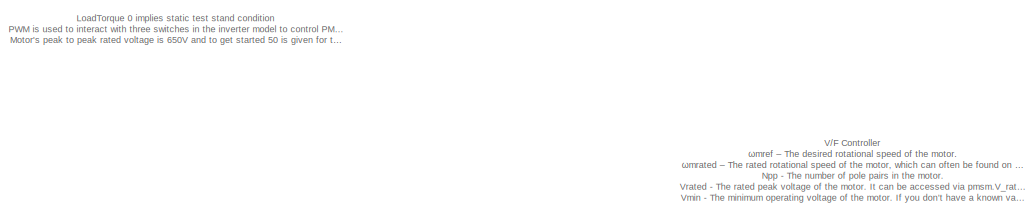
[diagram: root canvas - part 1/3, top right region]
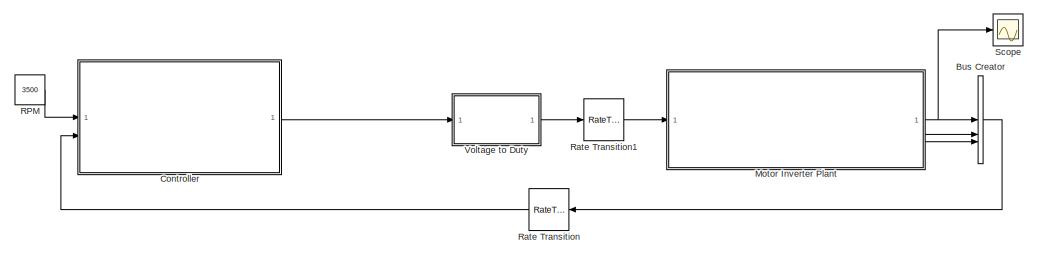
[diagram: root canvas - part 2/3, bottom left region]
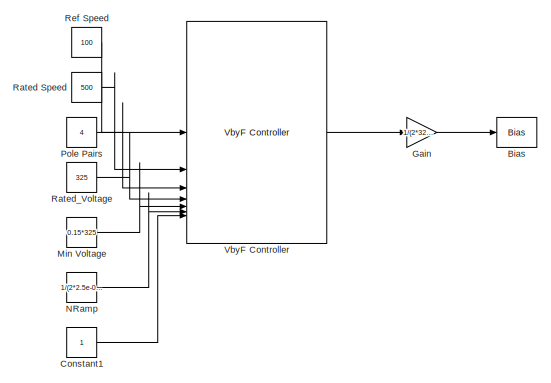
[diagram: root canvas - part 3/3, bottom right region]
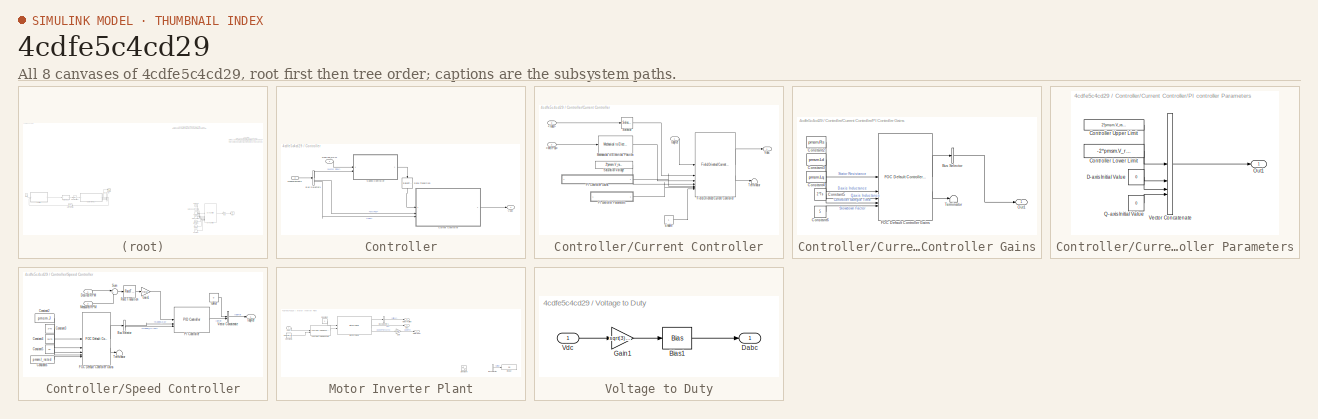
[diagram: thumbnail index - all 8 canvases of the model, root first then tree order]
MODEL slx_4cdfe5c4cd29
KIND model
CONFIG AbsTol = auto
CONFIG EnableMultiTasking = off
CONFIG FixedStep = auto
CONFIG MaxStep = auto
CONFIG MinStep = auto
CONFIG RelTol = 1e-3
CONFIG SampleTimeConstraint = Unconstrained
CONFIG SolverName = VariableStepAuto
CONFIG StartTime = 0.0
CONFIG StopTime = 2
BLOCK [Bias] Bias
  Bias = 0.5
  Commented = on
  SaturateOnIntegerOverflow = off
BLOCK [BusCreator] Bus Creator
  DisplayOption = bar
  InheritFromInputs = on
  Inputs = 3
BLOCK [Constant] Constant1
  Commented = on
BLOCK [SubSystem] Controller
BLOCK [BusSelector] Controller/Bus Selector1
  OutputSignals = Motor RPM,MtrPos,Iabc
BLOCK [SubSystem] Controller/Current Controller
BLOCK [Inport] Controller/Current Controller/<Iabc>
  Port = 3
BLOCK [Inport] Controller/Current Controller/<MtrPos>
  Port = 2
BLOCK [Constant] Controller/Current Controller/Enable
BLOCK [Reference] Controller/Current Controller/Field-Oriented Current Controller  REF=mcbfoclib/Field-Oriented Current Controller
  LibrarySourceBlock = mcblib/Controls/Controllers/Field-Oriented Current Controller
  SourceBlock = mcbfoclib/Field-Oriented Current Controller
  SourceType = Field-Oriented Current Controller
BLOCK [Inport] Controller/Current Controller/IdqRef
BLOCK [Reference] Controller/Current Controller/Mechanical to Electrical Position  REF=mcbpositiondecoderlib/Mechanical to Electrical Position
  LibrarySourceBlock = mcblib/Sensor Decoders/Mechanical to Electrical Position
  SourceBlock = mcbpositiondecoderlib/Mechanical to Electrical Position
  SourceType = Mechanical to Electrical Position
BLOCK [SubSystem] Controller/Current Controller/PI Controller Gains
BLOCK [BusSelector] Controller/Current Controller/PI Controller Gains/Bus Selector
  OutputAsBus = on
  OutputSignals = Daxis_Kp,Daxis_Ki*Ts,Qaxis_Kp,Qaxis_Ki*Ts
BLOCK [Constant] Controller/Current Controller/PI Controller Gains/Constant2
  Value = pmsm.Rs
BLOCK [Constant] Controller/Current Controller/PI Controller Gains/Constant3
  Value = pmsm.Ld
BLOCK [Constant] Controller/Current Controller/PI Controller Gains/Constant4
  Value = pmsm.Lq
BLOCK [Constant] Controller/Current Controller/PI Controller Gains/Constant5
  Value = 2*Ts
BLOCK [Constant] Controller/Current Controller/PI Controller Gains/Constant6
  Value = 5
BLOCK [Reference] Controller/Current Controller/PI Controller Gains/FOC Default Controller Gains  REF=mcbcontrollergainlib/FOC Default Controller Gains
  LibrarySourceBlock = mcblib/Controls/Controllers/FOC Default Controller Gains
  SourceBlock = mcbcontrollergainlib/FOC Default Controller Gains
  SourceType = FOC Default Controller Gains
BLOCK [Outport] Controller/Current Controller/PI Controller Gains/Out1
BLOCK [Terminator] Controller/Current Controller/PI Controller Gains/Terminator
BLOCK [SubSystem] Controller/Current Controller/PI controller Parameters
BLOCK [Constant] Controller/Current Controller/PI controller Parameters/Controller Lower Limit
  Value = -2*pmsm.V_rated/sqrt(3)
BLOCK [Constant] Controller/Current Controller/PI controller Parameters/Controller Upper Limit
  Value = 2*pmsm.V_rated/sqrt(3)
BLOCK [Constant] Controller/Current Controller/PI controller Parameters/D-axis Initial Value
  Value = 0
BLOCK [Outport] Controller/Current Controller/PI controller Parameters/Out1
BLOCK [Constant] Controller/Current Controller/PI controller Parameters/Q-axis Initial Value
  Value = 0
BLOCK [Concatenate] Controller/Current Controller/PI controller Parameters/Vector Concatenate
  NumInputs = 4
BLOCK [Constant] Controller/Current Controller/Saturation Voltage
  Value = 2*pmsm.V_rated/sqrt(3)
BLOCK [Selector] Controller/Current Controller/Selector
  IndexOptions = Index vector (dialog)
  Indices = [1 2]
  InputPortWidth = 3
  OutputSizes = 1
BLOCK [Terminator] Controller/Current Controller/Terminator
BLOCK [Outport] Controller/Current Controller/Vabc
BLOCK [Inport] Controller/Desired_RPM
BLOCK [Inport] Controller/Measurements
  Port = 2
BLOCK [RateTransition] Controller/Rate Transition
  NameLocation = left
  OutPortSampleTime = 2*Ts
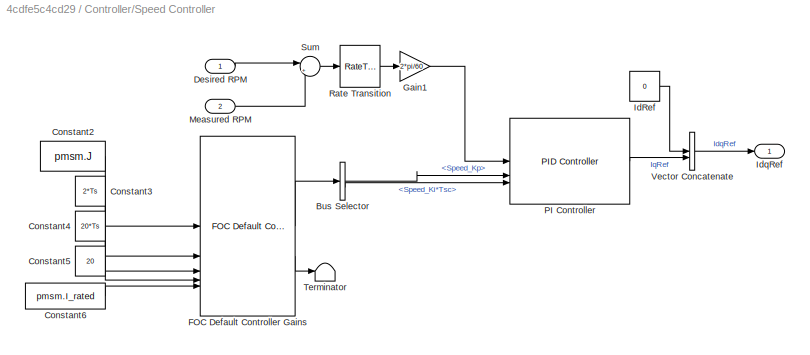
BLOCK [SubSystem] Controller/Speed Controller
BLOCK [BusSelector] Controller/Speed Controller/Bus Selector
  OutputSignals = Speed_Kp,Speed_Ki*Tsc
BLOCK [Constant] Controller/Speed Controller/Constant2
  Value = pmsm.J
BLOCK [Constant] Controller/Speed Controller/Constant3
  Value = 2*Ts
BLOCK [Constant] Controller/Speed Controller/Constant4
  Value = 20*Ts
BLOCK [Constant] Controller/Speed Controller/Constant5
  Value = 20
BLOCK [Constant] Controller/Speed Controller/Constant6
  Value = pmsm.I_rated
BLOCK [Inport] Controller/Speed Controller/Desired RPM
BLOCK [Reference] Controller/Speed Controller/FOC Default Controller Gains  REF=mcbcontrollergainlib/FOC Default Controller Gains
  LibrarySourceBlock = mcblib/Controls/Controllers/FOC Default Controller Gains
  SourceBlock = mcbcontrollergainlib/FOC Default Controller Gains
  SourceType = FOC Default Controller Gains
BLOCK [Gain] Controller/Speed Controller/Gain1
  Gain = 2*pi/60
BLOCK [Constant] Controller/Speed Controller/IdRef
  Value = 0
BLOCK [Outport] Controller/Speed Controller/IdqRef
BLOCK [Inport] Controller/Speed Controller/Measured RPM
  Port = 2
BLOCK [Reference] Controller/Speed Controller/PI Controller  REF=slpidlib/PID Controller
  LibrarySourceBlock = mcblib/Controls/Controllers/PI Controller
  SourceBlock = slpidlib/PID Controller
  SourceType = PID 1dof
BLOCK [RateTransition] Controller/Speed Controller/Rate Transition
  OutPortSampleTime = 20*Ts
BLOCK [Sum] Controller/Speed Controller/Sum
  Inputs = |+-
BLOCK [Terminator] Controller/Speed Controller/Terminator
BLOCK [Concatenate] Controller/Speed Controller/Vector Concatenate
BLOCK [Outport] Controller/Vabc
BLOCK [Gain] Gain
  Commented = on
  Gain = 1/(2*325)
BLOCK [Constant] Min Voltage
  Commented = on
  Value = 0.15*325
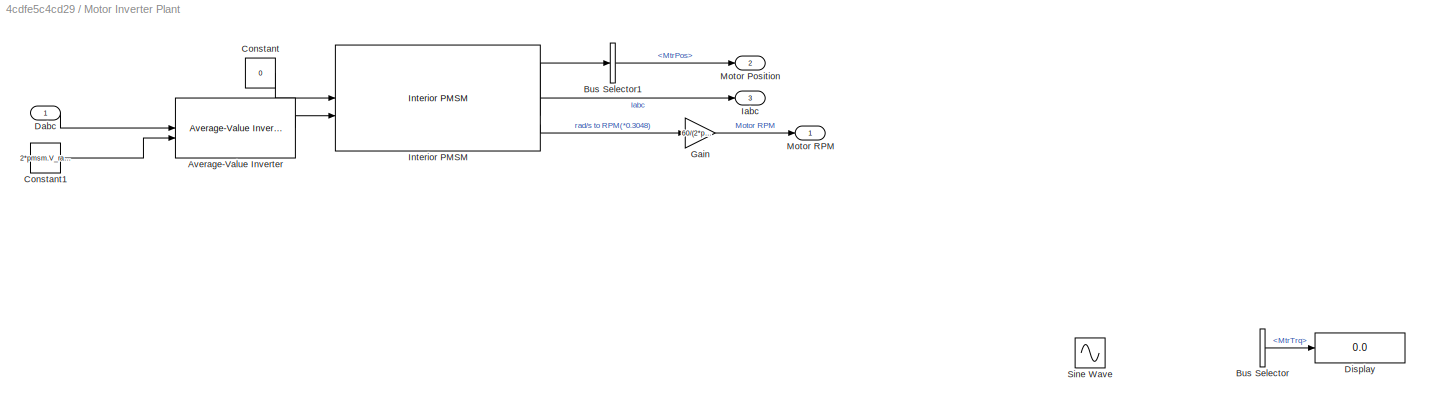
BLOCK [SubSystem] Motor Inverter Plant
BLOCK [Reference] Motor Inverter Plant/Average-Value Inverter  REF=mcbplantlib/Average-Value Inverter
  LibrarySourceBlock = mcblib/Electrical Systems/Inverters/Average-Value Inverter
  SourceBlock = mcbplantlib/Average-Value Inverter
  SourceType = Average Value Inverter
BLOCK [BusSelector] Motor Inverter Plant/Bus Selector
  Commented = on
  OutputSignals = MtrTrq
BLOCK [BusSelector] Motor Inverter Plant/Bus Selector1
  OutputSignals = MtrPos
BLOCK [Constant] Motor Inverter Plant/Constant
  Value = 0
BLOCK [Constant] Motor Inverter Plant/Constant1
  Value = 2*pmsm.V_rated/sqrt(3)
BLOCK [Inport] Motor Inverter Plant/Dabc
BLOCK [Display] Motor Inverter Plant/Display
  Commented = on
  Decimation = 1
BLOCK [Gain] Motor Inverter Plant/Gain
  Gain = 60/(2*pi)
BLOCK [Outport] Motor Inverter Plant/Iabc
  Port = 3
BLOCK [Reference] Motor Inverter Plant/Interior PMSM  REF=autolibpmsminterior/Interior PMSM
  LibrarySourceBlock = mcblib/Electrical Systems/Motors/Interior PMSM
  SourceBlock = autolibpmsminterior/Interior PMSM
  SourceType = Interior PMSM
BLOCK [Outport] Motor Inverter Plant/Motor Position
  Port = 2
BLOCK [Outport] Motor Inverter Plant/Motor RPM
BLOCK [Sin] Motor Inverter Plant/Sine Wave
  Bias = 0.5
  Commented = on
  Frequency = 120
  Phase = [0 -2*pi/3 -4*pi/3]
  SampleTime = 0
BLOCK [Constant] NRamp
  Commented = on
  Value = 1/(2*2.5e-05)
BLOCK [Constant] Pole Pairs
  Commented = on
  Value = 4
BLOCK [Constant] RPM
  Value = 3500
BLOCK [RateTransition] Rate Transition
  NameLocation = top
  OutPortSampleTime = 2*Ts
BLOCK [RateTransition] Rate Transition1
  OutPortSampleTime = Ts
BLOCK [Constant] Rated Speed
  Commented = on
  Value = 500
BLOCK [Constant] Rated_Voltage
  Commented = on
  Value = 325
BLOCK [Constant] Ref Speed
  Commented = on
  Value = 100
BLOCK [Scope] Scope
  Floating = off
  NumInputPorts = 1
  ScopeSpecificationString = Simulink.scopes.TimeScopeBlockCfg('CurrentConfiguration', extmgr.ConfigurationSet(extmgr.Configuration('Core','General UI',true),extmgr.Configuration('Core','Source UI',true),extmgr.Configuration('Sources','WiredSimulink',true),extmgr.Configuration('Visuals','Time Domain',true,'SerializedDisplays',{struct('MinYLimReal','-440.47044','MaxYLimReal','3964.23394','YLabelReal','','MinYLimMag',' 0.00000'...<+1532ch>
BLOCK [Reference] VbyF Controller  REF=mcbpmsmvflib/VbyF Controller
  Commented = on
  LibrarySourceBlock = mcblib/Controls/Controllers/VbyF Controller
  SourceBlock = mcbpmsmvflib/VbyF Controller
  SourceType = V/F Controller
BLOCK [SubSystem] Voltage to Duty
BLOCK [Bias] Voltage to Duty/Bias1
  Bias = 0.5
  SaturateOnIntegerOverflow = off
BLOCK [Outport] Voltage to Duty/Dabc
BLOCK [Gain] Voltage to Duty/Gain1
  Gain = sqrt(3)/(2*pmsm.V_rated)
BLOCK [Inport] Voltage to Duty/Vdc
ANNOTATION (root): V/F Controller ω m ref – The desired rotational speed of the motor. ω m rated – The rated rotational speed of the motor, which can often be found on a manufacturer’s spec sheet. Here, it can be accessed via pmsm.N_rated and has a value of 500 RPM. N pp - The number of pole pairs in the motor. V rated - The rated peak voltage of the motor. It can be accessed via pmsm.V_rated and has a value of 325 ...<+2131ch>
ANNOTATION (root): LoadTorque 0 implies static test stand condition PWM is used to interact with three switches in the inverter model to control PMSM Motor's peak to peak rated voltage is 650V and to get started 50 is given for the controller which will ramp up the input.
LINE Bus Creator:1 -> Rate Transition:1
LINE Constant1:1 -> VbyF Controller:7
LINE Controller/Bus Selector1:1 -> Controller/Speed Controller:2
LINE Controller/Bus Selector1:2 -> Controller/Current Controller:2
LINE Controller/Bus Selector1:3 -> Controller/Current Controller:3
LINE Controller/Current Controller/<Iabc>:1 -> Controller/Current Controller/Selector:1
LINE Controller/Current Controller/<MtrPos>:1 -> Controller/Current Controller/Mechanical to Electrical Position:1
LINE Controller/Current Controller/Enable:1 -> Controller/Current Controller/Field-Oriented Current Controller:7
LINE Controller/Current Controller/Field-Oriented Current Controller:1 -> Controller/Current Controller/Vabc:1
LINE Controller/Current Controller/Field-Oriented Current Controller:2 -> Controller/Current Controller/Terminator:1
LINE Controller/Current Controller/IdqRef:1 -> Controller/Current Controller/Field-Oriented Current Controller:1
LINE Controller/Current Controller/Mechanical to Electrical Position:1 -> Controller/Current Controller/Field-Oriented Current Controller:3
LINE Controller/Current Controller/PI Controller Gains/Bus Selector:1 -> Controller/Current Controller/PI Controller Gains/Out1:1
LINE Controller/Current Controller/PI Controller Gains/Constant2:1 -> Controller/Current Controller/PI Controller Gains/FOC Default Controller Gains:1
LINE Controller/Current Controller/PI Controller Gains/Constant3:1 -> Controller/Current Controller/PI Controller Gains/FOC Default Controller Gains:2
LINE Controller/Current Controller/PI Controller Gains/Constant4:1 -> Controller/Current Controller/PI Controller Gains/FOC Default Controller Gains:3
LINE Controller/Current Controller/PI Controller Gains/Constant5:1 -> Controller/Current Controller/PI Controller Gains/FOC Default Controller Gains:4
LINE Controller/Current Controller/PI Controller Gains/Constant6:1 -> Controller/Current Controller/PI Controller Gains/FOC Default Controller Gains:5
LINE Controller/Current Controller/PI Controller Gains/FOC Default Controller Gains:1 -> Controller/Current Controller/PI Controller Gains/Bus Selector:1
LINE Controller/Current Controller/PI Controller Gains/FOC Default Controller Gains:2 -> Controller/Current Controller/PI Controller Gains/Terminator:1
LINE Controller/Current Controller/PI Controller Gains:1 -> Controller/Current Controller/Field-Oriented Current Controller:5
LINE Controller/Current Controller/PI controller Parameters/Controller Lower Limit:1 -> Controller/Current Controller/PI controller Parameters/Vector Concatenate:2
LINE Controller/Current Controller/PI controller Parameters/Controller Upper Limit:1 -> Controller/Current Controller/PI controller Parameters/Vector Concatenate:1
LINE Controller/Current Controller/PI controller Parameters/D-axis Initial Value:1 -> Controller/Current Controller/PI controller Parameters/Vector Concatenate:3
LINE Controller/Current Controller/PI controller Parameters/Q-axis Initial Value:1 -> Controller/Current Controller/PI controller Parameters/Vector Concatenate:4
LINE Controller/Current Controller/PI controller Parameters/Vector Concatenate:1 -> Controller/Current Controller/PI controller Parameters/Out1:1
LINE Controller/Current Controller/PI controller Parameters:1 -> Controller/Current Controller/Field-Oriented Current Controller:6
LINE Controller/Current Controller/Saturation Voltage:1 -> Controller/Current Controller/Field-Oriented Current Controller:4
LINE Controller/Current Controller/Selector:1 -> Controller/Current Controller/Field-Oriented Current Controller:2
LINE Controller/Current Controller:1 -> Controller/Vabc:1
LINE Controller/Desired_RPM:1 -> Controller/Speed Controller:1
LINE Controller/Measurements:1 -> Controller/Bus Selector1:1
LINE Controller/Rate Transition:1 -> Controller/Current Controller:1
LINE Controller/Speed Controller/Bus Selector:1 -> Controller/Speed Controller/PI Controller:2
LINE Controller/Speed Controller/Bus Selector:2 -> Controller/Speed Controller/PI Controller:3
LINE Controller/Speed Controller/Constant2:1 -> Controller/Speed Controller/FOC Default Controller Gains:1
LINE Controller/Speed Controller/Constant3:1 -> Controller/Speed Controller/FOC Default Controller Gains:2
LINE Controller/Speed Controller/Constant4:1 -> Controller/Speed Controller/FOC Default Controller Gains:3
LINE Controller/Speed Controller/Constant5:1 -> Controller/Speed Controller/FOC Default Controller Gains:4
LINE Controller/Speed Controller/Constant6:1 -> Controller/Speed Controller/FOC Default Controller Gains:5
LINE Controller/Speed Controller/Desired RPM:1 -> Controller/Speed Controller/Sum:1
LINE Controller/Speed Controller/FOC Default Controller Gains:1 -> Controller/Speed Controller/Bus Selector:1
LINE Controller/Speed Controller/FOC Default Controller Gains:2 -> Controller/Speed Controller/Terminator:1
LINE Controller/Speed Controller/Gain1:1 -> Controller/Speed Controller/PI Controller:1
LINE Controller/Speed Controller/IdRef:1 -> Controller/Speed Controller/Vector Concatenate:1
LINE Controller/Speed Controller/Measured RPM:1 -> Controller/Speed Controller/Sum:2
LINE Controller/Speed Controller/PI Controller:1 -> Controller/Speed Controller/Vector Concatenate:2
LINE Controller/Speed Controller/Rate Transition:1 -> Controller/Speed Controller/Gain1:1
LINE Controller/Speed Controller/Sum:1 -> Controller/Speed Controller/Rate Transition:1
LINE Controller/Speed Controller/Vector Concatenate:1 -> Controller/Speed Controller/IdqRef:1
LINE Controller/Speed Controller:1 -> Controller/Rate Transition:1
LINE Controller:1 -> Voltage to Duty:1
LINE Gain:1 -> Bias:1
LINE Min Voltage:1 -> VbyF Controller:5
LINE Motor Inverter Plant/Average-Value Inverter:1 -> Motor Inverter Plant/Interior PMSM:2
LINE Motor Inverter Plant/Bus Selector1:1 -> Motor Inverter Plant/Motor Position:1
LINE Motor Inverter Plant/Bus Selector:1 -> Motor Inverter Plant/Display:1
LINE Motor Inverter Plant/Constant1:1 -> Motor Inverter Plant/Average-Value Inverter:2
LINE Motor Inverter Plant/Constant:1 -> Motor Inverter Plant/Interior PMSM:1
LINE Motor Inverter Plant/Dabc:1 -> Motor Inverter Plant/Average-Value Inverter:1
LINE Motor Inverter Plant/Gain:1 -> Motor Inverter Plant/Motor RPM:1
LINE Motor Inverter Plant/Interior PMSM:1 -> Motor Inverter Plant/Bus Selector1:1
LINE Motor Inverter Plant/Interior PMSM:2 -> Motor Inverter Plant/Iabc:1
LINE Motor Inverter Plant/Interior PMSM:3 -> Motor Inverter Plant/Gain:1
NET Motor Inverter Plant:1 -> Bus Creator:1, Scope:1
LINE Motor Inverter Plant:2 -> Bus Creator:2
LINE Motor Inverter Plant:3 -> Bus Creator:3
LINE NRamp:1 -> VbyF Controller:6
LINE Pole Pairs:1 -> VbyF Controller:3
LINE RPM:1 -> Controller:1
LINE Rate Transition1:1 -> Motor Inverter Plant:1
LINE Rate Transition:1 -> Controller:2
LINE Rated Speed:1 -> VbyF Controller:2
LINE Rated_Voltage:1 -> VbyF Controller:4
LINE Ref Speed:1 -> VbyF Controller:1
LINE VbyF Controller:1 -> Gain:1
LINE Voltage to Duty/Bias1:1 -> Voltage to Duty/Dabc:1
LINE Voltage to Duty/Gain1:1 -> Voltage to Duty/Bias1:1
LINE Voltage to Duty/Vdc:1 -> Voltage to Duty/Gain1:1
LINE Voltage to Duty:1 -> Rate Transition1:1
note: NET lines group one-source signal fan-out (src -> all destinations, sorted); 1:1 wires keep LINE
